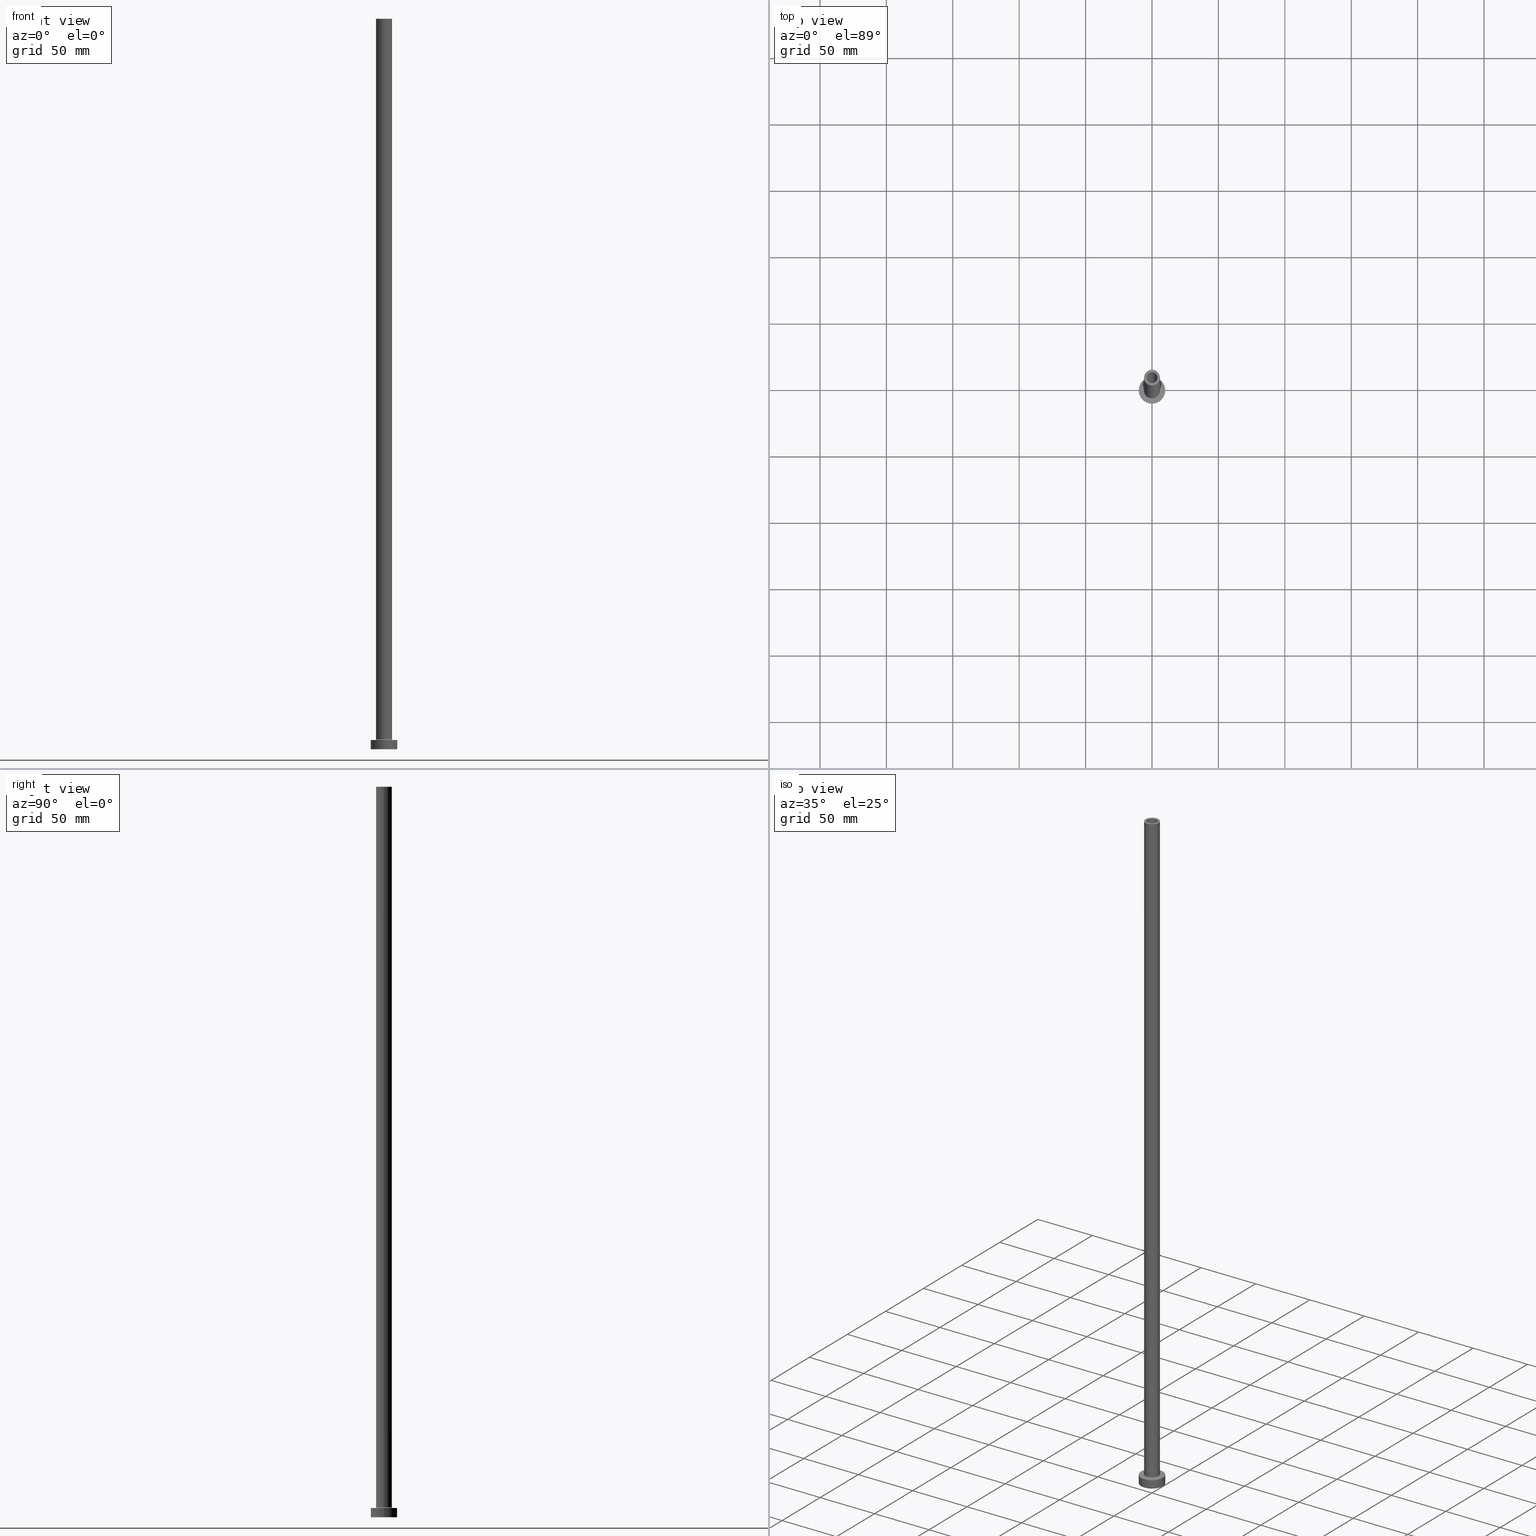
[diagram: canonical four-view strip — front | top / right | iso, engineering-drawing reading convention]
A machine part, canonical four-view strip (front | top / right | iso — engineering-drawing reading convention). The complete STEP part file that produces these views, byte-faithful:
ISO-10303-21;
HEADER;
FILE_DESCRIPTION (( 'STEP AP203' ),
    '1' );
FILE_NAME ('f1fe.STEP',
    '2023-02-13T07:38:58',
    ( '' ),
    ( '' ),
    'SwSTEP 2.0',
    'SolidWorks 2019',
    '' );
FILE_SCHEMA (( 'CONFIG_CONTROL_DESIGN' ));
ENDSEC;

DATA;
#1 = CARTESIAN_POINT ( 'NONE',  ( 0.000000000000000000, 0.000000000000000000, 550.0000000000000000 ) ) ;
#2 = EDGE_CURVE ( 'NONE', #344, #129, #308, .T. ) ;
#3 = CARTESIAN_POINT ( 'NONE',  ( -10.00000000000000000, 0.000000000000000000, 7.000000000000000000 ) ) ;
#4 = CARTESIAN_POINT ( 'NONE',  ( 0.000000000000000000, 0.000000000000000000, 550.0000000000000000 ) ) ;
#5 = DIRECTION ( 'NONE',  ( 0.000000000000000000, 0.000000000000000000, 1.000000000000000000 ) ) ;
#6 = CARTESIAN_POINT ( 'NONE',  ( -4.099999999999999645, 0.000000000000000000, 550.0000000000000000 ) ) ;
#7 = APPROVAL_STATUS ( 'not_yet_approved' ) ;
#8 = CIRCLE ( 'NONE', #23, 4.250000000000000000 ) ;
#9 =( GEOMETRIC_REPRESENTATION_CONTEXT ( 3 ) GLOBAL_UNCERTAINTY_ASSIGNED_CONTEXT ( ( #285 ) ) GLOBAL_UNIT_ASSIGNED_CONTEXT ( ( #151, #10, #235 ) ) REPRESENTATION_CONTEXT ( 'NONE', 'WORKASPACE' ) );
#10 =( NAMED_UNIT ( * ) PLANE_ANGLE_UNIT ( ) SI_UNIT ( $, .RADIAN. ) );
#11 = ORIENTED_EDGE ( 'NONE', *, *, #343, .T. ) ;
#12 = CARTESIAN_POINT ( 'NONE',  ( 6.000000000000000888, 7.347880794884120722E-16, 7.700000000000040146 ) ) ;
#13 = DIRECTION ( 'NONE',  ( 0.000000000000000000, 0.000000000000000000, 1.000000000000000000 ) ) ;
#14 = APPLICATION_CONTEXT ( 'configuration controlled 3d designs of mechanical parts and assemblies' ) ;
#15 = EDGE_CURVE ( 'NONE', #458, #135, #229, .T. ) ;
#16 = ORIENTED_EDGE ( 'NONE', *, *, #187, .T. ) ;
#17 = AXIS2_PLACEMENT_3D ( 'NONE', #260, #252, #327 ) ;
#18 = APPROVAL_PERSON_ORGANIZATION ( #281, #310, #146 ) ;
#19 = DIRECTION ( 'NONE',  ( -1.000000000000000000, 0.000000000000000000, 0.000000000000000000 ) ) ;
#20 = EDGE_CURVE ( 'NONE', #135, #313, #412, .T. ) ;
#21 = DIRECTION ( 'NONE',  ( 0.000000000000000000, 0.000000000000000000, 1.000000000000000000 ) ) ;
#22 = VERTEX_POINT ( 'NONE', #25 ) ;
#23 = AXIS2_PLACEMENT_3D ( 'NONE', #208, #390, #213 ) ;
#24 = CC_DESIGN_APPROVAL ( #310, ( #431 ) ) ;
#25 = CARTESIAN_POINT ( 'NONE',  ( -10.00000000000000000, 0.000000000000000000, 0.000000000000000000 ) ) ;
#26 = ORIENTED_EDGE ( 'NONE', *, *, #434, .F. ) ;
#27 = APPROVAL_ROLE ( '' ) ;
#28 = ORIENTED_EDGE ( 'NONE', *, *, #52, .T. ) ;
#29 = EDGE_LOOP ( 'NONE', ( #94, #26, #384, #245 ) ) ;
#30 = CIRCLE ( 'NONE', #294, 0.7000000000000000666 ) ;
#31 = DIRECTION ( 'NONE',  ( 0.000000000000000000, 0.000000000000000000, 1.000000000000000000 ) ) ;
#32 = DIRECTION ( 'NONE',  ( 0.000000000000000000, -1.000000000000000000, 0.000000000000000000 ) ) ;
#33 = ORIENTED_EDGE ( 'NONE', *, *, #358, .F. ) ;
#34 = CC_DESIGN_DATE_AND_TIME_ASSIGNMENT ( #417, #131, ( #339 ) ) ;
#35 = PLANE ( 'NONE',  #53 ) ;
#36 = AXIS2_PLACEMENT_3D ( 'NONE', #354, #392, #169 ) ;
#37 = DIRECTION ( 'NONE',  ( 1.000000000000000000, 0.000000000000000000, 0.000000000000000000 ) ) ;
#38 = CARTESIAN_POINT ( 'NONE',  ( 0.000000000000000000, 0.000000000000000000, 505.0000000000000000 ) ) ;
#39 = DIRECTION ( 'NONE',  ( 1.000000000000000000, 0.000000000000000000, 0.000000000000000000 ) ) ;
#40 = CARTESIAN_POINT ( 'NONE',  ( 4.099999999999999645, 5.021051876504147385E-16, 505.0000000000000000 ) ) ;
#41 = PERSON_AND_ORGANIZATION ( #119, #72 ) ;
#42 = DIRECTION ( 'NONE',  ( 0.000000000000000000, 0.000000000000000000, -1.000000000000000000 ) ) ;
#43 = CARTESIAN_POINT ( 'NONE',  ( 0.000000000000000000, 0.000000000000000000, 517.0208152801712913 ) ) ;
#44 = CC_DESIGN_PERSON_AND_ORGANIZATION_ASSIGNMENT ( #258, #400, ( #431 ) ) ;
#45 = DIRECTION ( 'NONE',  ( 1.000000000000000000, 0.000000000000000000, 0.000000000000000000 ) ) ;
#46 = DIRECTION ( 'NONE',  ( 0.000000000000000000, 0.000000000000000000, 1.000000000000000000 ) ) ;
#47 = CIRCLE ( 'NONE', #306, 4.099999999999999645 ) ;
#48 = PRODUCT ( 'f1fe', 'f1fe', '', ( #251 ) ) ;
#49 = CARTESIAN_POINT ( 'NONE',  ( 0.000000000000000000, 0.000000000000000000, 550.0000000000000000 ) ) ;
#50 = CC_DESIGN_PERSON_AND_ORGANIZATION_ASSIGNMENT ( #97, #223, ( #386 ) ) ;
#51 = LINE ( 'NONE', #300, #183 ) ;
#52 = EDGE_CURVE ( 'NONE', #82, #203, #441, .T. ) ;
#53 = AXIS2_PLACEMENT_3D ( 'NONE', #320, #286, #108 ) ;
#54 = ADVANCED_FACE ( 'NONE', ( #452 ), #345, .T. ) ;
#55 = CARTESIAN_POINT ( 'NONE',  ( -6.700000000000001066, 8.205133554287267548E-16, 7.700000000000040146 ) ) ;
#56 = DIRECTION ( 'NONE',  ( 1.000000000000000000, 0.000000000000000000, 0.000000000000000000 ) ) ;
#57 = PERSON_AND_ORGANIZATION_ROLE ( 'classification_officer' ) ;
#58 = ORIENTED_EDGE ( 'NONE', *, *, #187, .F. ) ;
#59 = DIRECTION ( 'NONE',  ( 1.000000000000000000, 0.000000000000000000, 0.000000000000000000 ) ) ;
#60 = EDGE_LOOP ( 'NONE', ( #92, #232 ) ) ;
#61 = CIRCLE ( 'NONE', #436, 6.000000000000000888 ) ;
#62 = ORIENTED_EDGE ( 'NONE', *, *, #378, .T. ) ;
#63 = VECTOR ( 'NONE', #148, 1000.000000000000000 ) ;
#64 = DESIGN_CONTEXT ( 'detailed design', #14, 'design' ) ;
#65 = EDGE_CURVE ( 'NONE', #129, #418, #426, .T. ) ;
#66 = DIRECTION ( 'NONE',  ( 1.000000000000000000, 0.000000000000000000, 0.000000000000000000 ) ) ;
#67 = FACE_BOUND ( 'NONE', #342, .T. ) ;
#68 = ORIENTED_EDGE ( 'NONE', *, *, #435, .T. ) ;
#69 = CARTESIAN_POINT ( 'NONE',  ( 0.000000000000000000, 0.000000000000000000, 0.000000000000000000 ) ) ;
#70 = DIRECTION ( 'NONE',  ( 1.000000000000000000, 0.000000000000000000, -0.000000000000000000 ) ) ;
#71 = AXIS2_PLACEMENT_3D ( 'NONE', #267, #405, #265 ) ;
#72 = ORGANIZATION ( 'NEUR�EN�', 'NEUR�EN�', '' ) ;
#73 = CARTESIAN_POINT ( 'NONE',  ( -10.00000000000000000, 0.000000000000000000, 7.000000000000000000 ) ) ;
#74 = PLANE ( 'NONE',  #153 ) ;
#75 = DIRECTION ( 'NONE',  ( -1.000000000000000000, 0.000000000000000000, 0.000000000000000000 ) ) ;
#76 = APPROVAL_DATE_TIME ( #117, #310 ) ;
#77 = DIRECTION ( 'NONE',  ( -0.000000000000000000, -0.000000000000000000, -1.000000000000000000 ) ) ;
#78 = DIRECTION ( 'NONE',  ( 0.000000000000000000, 0.000000000000000000, -1.000000000000000000 ) ) ;
#79 = DIRECTION ( 'NONE',  ( 1.000000000000000000, 0.000000000000000000, 0.000000000000000000 ) ) ;
#80 = EDGE_CURVE ( 'NONE', #207, #82, #377, .T. ) ;
#81 = DIRECTION ( 'NONE',  ( 0.000000000000000000, 0.000000000000000000, 1.000000000000000000 ) ) ;
#82 = VERTEX_POINT ( 'NONE', #40 ) ;
#83 = CIRCLE ( 'NONE', #455, 4.099999999999999645 ) ;
#84 = AXIS2_PLACEMENT_3D ( 'NONE', #317, #460, #365 ) ;
#85 = EDGE_LOOP ( 'NONE', ( #448, #347, #58, #284 ) ) ;
#86 = DIRECTION ( 'NONE',  ( -0.000000000000000000, -0.000000000000000000, -1.000000000000000000 ) ) ;
#87 = APPROVAL_STATUS ( 'not_yet_approved' ) ;
#88 = DIRECTION ( 'NONE',  ( 0.000000000000000000, 0.000000000000000000, 1.000000000000000000 ) ) ;
#89 = AXIS2_PLACEMENT_3D ( 'NONE', #170, #357, #37 ) ;
#90 = APPROVAL_DATE_TIME ( #206, #341 ) ;
#91 = ORIENTED_EDGE ( 'NONE', *, *, #358, .T. ) ;
#92 = ORIENTED_EDGE ( 'NONE', *, *, #194, .F. ) ;
#93 = DIRECTION ( 'NONE',  ( 0.000000000000000000, 0.000000000000000000, 1.000000000000000000 ) ) ;
#94 = ORIENTED_EDGE ( 'NONE', *, *, #435, .F. ) ;
#95 = ADVANCED_FACE ( 'NONE', ( #210, #107 ), #100, .T. ) ;
#96 = ORIENTED_EDGE ( 'NONE', *, *, #162, .F. ) ;
#97 = PERSON_AND_ORGANIZATION ( #119, #72 ) ;
#98 = COORDINATED_UNIVERSAL_TIME_OFFSET ( 1, 0, .AHEAD. ) ;
#99 = DIRECTION ( 'NONE',  ( 0.000000000000000000, 0.000000000000000000, 1.000000000000000000 ) ) ;
#100 = PLANE ( 'NONE',  #236 ) ;
#101 = EDGE_CURVE ( 'NONE', #422, #344, #8, .T. ) ;
#102 = AXIS2_PLACEMENT_3D ( 'NONE', #192, #336, #19 ) ;
#103 = ORIENTED_EDGE ( 'NONE', *, *, #65, .T. ) ;
#104 = AXIS2_PLACEMENT_3D ( 'NONE', #328, #321, #39 ) ;
#105 = FACE_OUTER_BOUND ( 'NONE', #351, .T. ) ;
#106 = ORIENTED_EDGE ( 'NONE', *, *, #80, .F. ) ;
#107 = FACE_OUTER_BOUND ( 'NONE', #428, .T. ) ;
#108 = DIRECTION ( 'NONE',  ( 1.000000000000000000, 0.000000000000000000, -0.000000000000000000 ) ) ;
#109 = FACE_OUTER_BOUND ( 'NONE', #60, .T. ) ;
#110 = ORIENTED_EDGE ( 'NONE', *, *, #124, .F. ) ;
#111 = DIRECTION ( 'NONE',  ( 1.000000000000000000, 0.000000000000000000, 0.000000000000000000 ) ) ;
#112 = DIRECTION ( 'NONE',  ( 0.000000000000000000, 0.000000000000000000, -1.000000000000000000 ) ) ;
#113 = CIRCLE ( 'NONE', #293, 10.00000000000000000 ) ;
#114 = DIRECTION ( 'NONE',  ( 0.000000000000000000, 0.000000000000000000, -1.000000000000000000 ) ) ;
#115 = CARTESIAN_POINT ( 'NONE',  ( 10.00000000000000000, 1.224646799147353256E-15, 7.000000000000000000 ) ) ;
#116 = FACE_OUTER_BOUND ( 'NONE', #381, .T. ) ;
#117 = DATE_AND_TIME ( #202, #276 ) ;
#118 = PRODUCT_DEFINITION_SHAPE ( 'NONE', 'NONE',  #431 ) ;
#119 = PERSON ( 'NEUR�EN�', 'NEUR�EN�', 'NEUR�EN�', ('NEUR�EN�'), ('NEUR�EN�'), ('NEUR�EN�') ) ;
#120 = VECTOR ( 'NONE', #189, 1000.000000000000000 ) ;
#121 = ORIENTED_EDGE ( 'NONE', *, *, #408, .F. ) ;
#122 = CARTESIAN_POINT ( 'NONE',  ( 10.00000000000000000, 1.224646799147353256E-15, 0.000000000000000000 ) ) ;
#123 = DIRECTION ( 'NONE',  ( 1.000000000000000000, 0.000000000000000000, 0.000000000000000000 ) ) ;
#124 = EDGE_CURVE ( 'NONE', #22, #166, #319, .T. ) ;
#125 = ORIENTED_EDGE ( 'NONE', *, *, #352, .T. ) ;
#126 = LOCAL_TIME ( 8, 38, 58.00000000000000000, #163 ) ;
#127 = EDGE_LOOP ( 'NONE', ( #305, #68, #11, #425 ) ) ;
#128 = ORIENTED_EDGE ( 'NONE', *, *, #154, .T. ) ;
#129 = VERTEX_POINT ( 'NONE', #432 ) ;
#130 = AXIS2_PLACEMENT_3D ( 'NONE', #227, #261, #75 ) ;
#131 = DATE_TIME_ROLE ( 'classification_date' ) ;
#132 = ORIENTED_EDGE ( 'NONE', *, *, #172, .F. ) ;
#133 = ORIENTED_EDGE ( 'NONE', *, *, #225, .F. ) ;
#134 = DIRECTION ( 'NONE',  ( 1.000000000000000000, 0.000000000000000000, 0.000000000000000000 ) ) ;
#135 = VERTEX_POINT ( 'NONE', #141 ) ;
#136 = CARTESIAN_POINT ( 'NONE',  ( 0.000000000000000000, 0.000000000000000000, 0.000000000000000000 ) ) ;
#137 = ADVANCED_FACE ( 'NONE', ( #361 ), #338, .F. ) ;
#138 = AXIS2_PLACEMENT_3D ( 'NONE', #254, #257, #111 ) ;
#139 = LOCAL_TIME ( 8, 38, 58.00000000000000000, #98 ) ;
#140 = CYLINDRICAL_SURFACE ( 'NONE', #17, 4.250000000000000000 ) ;
#141 = CARTESIAN_POINT ( 'NONE',  ( -6.000000000000000888, 0.000000000000000000, 7.700000000000040146 ) ) ;
#142 = CARTESIAN_POINT ( 'NONE',  ( 0.000000000000000000, 0.000000000000000000, 7.700000000000040146 ) ) ;
#143 = PERSON_AND_ORGANIZATION ( #119, #72 ) ;
#144 = DIRECTION ( 'NONE',  ( 0.000000000000000000, 0.000000000000000000, -1.000000000000000000 ) ) ;
#145 = CARTESIAN_POINT ( 'NONE',  ( 4.250000000000000000, 5.204748896376250699E-16, 505.0000000000000000 ) ) ;
#146 = APPROVAL_ROLE ( '' ) ;
#147 = CARTESIAN_POINT ( 'NONE',  ( 0.000000000000000000, 0.000000000000000000, 7.700000000000040146 ) ) ;
#148 = DIRECTION ( 'NONE',  ( -0.000000000000000000, -0.000000000000000000, -1.000000000000000000 ) ) ;
#149 = EDGE_CURVE ( 'NONE', #416, #135, #323, .T. ) ;
#150 = ORIENTED_EDGE ( 'NONE', *, *, #175, .F. ) ;
#151 =( LENGTH_UNIT ( ) NAMED_UNIT ( * ) SI_UNIT ( .MILLI., .METRE. ) );
#152 = AXIS2_PLACEMENT_3D ( 'NONE', #1, #42, #316 ) ;
#153 = AXIS2_PLACEMENT_3D ( 'NONE', #330, #255, #362 ) ;
#154 = EDGE_CURVE ( 'NONE', #413, #203, #51, .T. ) ;
#155 = DIRECTION ( 'NONE',  ( 0.000000000000000000, 0.000000000000000000, 1.000000000000000000 ) ) ;
#156 = EDGE_LOOP ( 'NONE', ( #195, #168, #200, #121 ) ) ;
#157 = AXIS2_PLACEMENT_3D ( 'NONE', #55, #158, #243 ) ;
#158 = DIRECTION ( 'NONE',  ( 1.224646799147353207E-16, 1.000000000000000000, -0.000000000000000000 ) ) ;
#159 = AXIS2_PLACEMENT_3D ( 'NONE', #43, #112, #324 ) ;
#160 = CARTESIAN_POINT ( 'NONE',  ( 0.000000000000000000, 0.000000000000000000, 505.0000000000000000 ) ) ;
#161 = ORIENTED_EDGE ( 'NONE', *, *, #240, .T. ) ;
#162 = EDGE_CURVE ( 'NONE', #424, #416, #61, .T. ) ;
#163 = COORDINATED_UNIVERSAL_TIME_OFFSET ( 1, 0, .AHEAD. ) ;
#164 = DIRECTION ( 'NONE',  ( -1.000000000000000000, 0.000000000000000000, 0.000000000000000000 ) ) ;
#165 = LOCAL_TIME ( 8, 38, 58.00000000000000000, #325 ) ;
#166 = VERTEX_POINT ( 'NONE', #122 ) ;
#167 = CARTESIAN_POINT ( 'NONE',  ( 0.000000000000000000, 0.000000000000000000, 7.700000000000040146 ) ) ;
#168 = ORIENTED_EDGE ( 'NONE', *, *, #15, .F. ) ;
#169 = DIRECTION ( 'NONE',  ( -1.000000000000000000, 0.000000000000000000, 0.000000000000000000 ) ) ;
#170 = CARTESIAN_POINT ( 'NONE',  ( 0.000000000000000000, 0.000000000000000000, 0.000000000000000000 ) ) ;
#171 = DIRECTION ( 'NONE',  ( -0.000000000000000000, -0.000000000000000000, -1.000000000000000000 ) ) ;
#172 = EDGE_CURVE ( 'NONE', #207, #413, #282, .T. ) ;
#173 = CARTESIAN_POINT ( 'NONE',  ( 4.250000000000000000, 5.204748896376250699E-16, 0.000000000000000000 ) ) ;
#174 = AXIS2_PLACEMENT_3D ( 'NONE', #414, #86, #164 ) ;
#175 = EDGE_CURVE ( 'NONE', #424, #458, #440, .T. ) ;
#176 = CARTESIAN_POINT ( 'NONE',  ( -6.700000000000001066, 8.205133554287267548E-16, 7.000000000000020428 ) ) ;
#177 = FACE_OUTER_BOUND ( 'NONE', #248, .T. ) ;
#178 = CARTESIAN_POINT ( 'NONE',  ( 4.250000000000000000, 5.204748896376250699E-16, 517.0208152801712913 ) ) ;
#179 = CARTESIAN_POINT ( 'NONE',  ( -6.000000000000000888, 0.000000000000000000, 550.0000000000000000 ) ) ;
#180 = CYLINDRICAL_SURFACE ( 'NONE', #102, 4.099999999999999645 ) ;
#181 = PERSON_AND_ORGANIZATION_ROLE ( 'design_supplier' ) ;
#182 = FACE_BOUND ( 'NONE', #280, .T. ) ;
#183 = VECTOR ( 'NONE', #78, 1000.000000000000000 ) ;
#184 = CC_DESIGN_SECURITY_CLASSIFICATION ( #339, ( #386 ) ) ;
#185 = CARTESIAN_POINT ( 'NONE',  ( 6.000000000000000888, 7.347880794884120722E-16, 550.0000000000000000 ) ) ;
#186 = ORIENTED_EDGE ( 'NONE', *, *, #52, .F. ) ;
#187 = EDGE_CURVE ( 'NONE', #190, #313, #447, .T. ) ;
#188 = DIRECTION ( 'NONE',  ( 0.000000000000000000, 0.000000000000000000, 1.000000000000000000 ) ) ;
#189 = DIRECTION ( 'NONE',  ( -0.000000000000000000, -0.000000000000000000, -1.000000000000000000 ) ) ;
#190 = VERTEX_POINT ( 'NONE', #411 ) ;
#191 = CIRCLE ( 'NONE', #138, 10.00000000000000000 ) ;
#192 = CARTESIAN_POINT ( 'NONE',  ( 0.000000000000000000, 0.000000000000000000, 550.0000000000000000 ) ) ;
#193 = ORIENTED_EDGE ( 'NONE', *, *, #371, .T. ) ;
#194 = EDGE_CURVE ( 'NONE', #344, #422, #376, .T. ) ;
#195 = ORIENTED_EDGE ( 'NONE', *, *, #20, .F. ) ;
#196 = PERSON_AND_ORGANIZATION ( #119, #72 ) ;
#197 = AXIS2_PLACEMENT_3D ( 'NONE', #444, #77, #427 ) ;
#198 = ORIENTED_EDGE ( 'NONE', *, *, #434, .T. ) ;
#199 = APPROVAL_PERSON_ORGANIZATION ( #196, #453, #27 ) ;
#200 = ORIENTED_EDGE ( 'NONE', *, *, #318, .T. ) ;
#201 = ORIENTED_EDGE ( 'NONE', *, *, #65, .F. ) ;
#202 = CALENDAR_DATE ( 2023, 13, 2 ) ;
#203 = VERTEX_POINT ( 'NONE', #368 ) ;
#204 = AXIS2_PLACEMENT_3D ( 'NONE', #273, #239, #56 ) ;
#205 = CIRCLE ( 'NONE', #84, 6.700000000000001066 ) ;
#206 = DATE_AND_TIME ( #383, #139 ) ;
#207 = VERTEX_POINT ( 'NONE', #363 ) ;
#208 = CARTESIAN_POINT ( 'NONE',  ( 0.000000000000000000, 0.000000000000000000, 505.0000000000000000 ) ) ;
#209 = FACE_OUTER_BOUND ( 'NONE', #29, .T. ) ;
#210 = FACE_BOUND ( 'NONE', #370, .T. ) ;
#211 = FACE_OUTER_BOUND ( 'NONE', #456, .T. ) ;
#212 = ORIENTED_EDGE ( 'NONE', *, *, #2, .F. ) ;
#213 = DIRECTION ( 'NONE',  ( 1.000000000000000000, 0.000000000000000000, 0.000000000000000000 ) ) ;
#214 = APPROVAL_DATE_TIME ( #461, #453 ) ;
#215 = DIRECTION ( 'NONE',  ( -0.000000000000000000, -0.000000000000000000, -1.000000000000000000 ) ) ;
#216 = CARTESIAN_POINT ( 'NONE',  ( 6.000000000000000888, 7.347880794884120722E-16, 550.0000000000000000 ) ) ;
#217 = CIRCLE ( 'NONE', #274, 4.250000000000000000 ) ;
#218 = AXIS2_PLACEMENT_3D ( 'NONE', #402, #262, #70 ) ;
#219 = SECURITY_CLASSIFICATION_LEVEL ( 'unclassified' ) ;
#220 = LINE ( 'NONE', #178, #311 ) ;
#221 = CYLINDRICAL_SURFACE ( 'NONE', #159, 4.250000000000000000 ) ;
#222 = CARTESIAN_POINT ( 'NONE',  ( -6.000000000000000888, 0.000000000000000000, 550.0000000000000000 ) ) ;
#223 = PERSON_AND_ORGANIZATION_ROLE ( 'creator' ) ;
#224 = CC_DESIGN_PERSON_AND_ORGANIZATION_ASSIGNMENT ( #326, #246, ( #48 ) ) ;
#225 = EDGE_CURVE ( 'NONE', #413, #207, #47, .T. ) ;
#226 = ORIENTED_EDGE ( 'NONE', *, *, #101, .T. ) ;
#227 = CARTESIAN_POINT ( 'NONE',  ( 0.000000000000000000, 0.000000000000000000, 550.0000000000000000 ) ) ;
#228 = ADVANCED_FACE ( 'NONE', ( #233 ), #180, .F. ) ;
#229 = CIRCLE ( 'NONE', #407, 6.000000000000000888 ) ;
#230 = APPROVAL_PERSON_ORGANIZATION ( #244, #341, #346 ) ;
#231 = CARTESIAN_POINT ( 'NONE',  ( 0.000000000000000000, 0.000000000000000000, 550.0000000000000000 ) ) ;
#232 = ORIENTED_EDGE ( 'NONE', *, *, #101, .F. ) ;
#233 = FACE_OUTER_BOUND ( 'NONE', #312, .T. ) ;
#234 = CC_DESIGN_DATE_AND_TIME_ASSIGNMENT ( #266, #369, ( #431 ) ) ;
#235 =( NAMED_UNIT ( * ) SI_UNIT ( $, .STERADIAN. ) SOLID_ANGLE_UNIT ( ) );
#236 = AXIS2_PLACEMENT_3D ( 'NONE', #4, #388, #250 ) ;
#237 = EDGE_LOOP ( 'NONE', ( #201, #275 ) ) ;
#238 = CC_DESIGN_PERSON_AND_ORGANIZATION_ASSIGNMENT ( #41, #57, ( #339 ) ) ;
#239 = DIRECTION ( 'NONE',  ( -0.000000000000000000, -0.000000000000000000, -1.000000000000000000 ) ) ;
#240 = EDGE_CURVE ( 'NONE', #135, #458, #242, .T. ) ;
#241 = ADVANCED_FACE ( 'NONE', ( #304 ), #403, .T. ) ;
#242 = CIRCLE ( 'NONE', #366, 6.000000000000000888 ) ;
#243 = DIRECTION ( 'NONE',  ( -1.000000000000000000, 1.224646799147353454E-16, 0.000000000000000000 ) ) ;
#244 = PERSON_AND_ORGANIZATION ( #119, #72 ) ;
#245 = ORIENTED_EDGE ( 'NONE', *, *, #124, .T. ) ;
#246 = PERSON_AND_ORGANIZATION_ROLE ( 'design_owner' ) ;
#247 = EDGE_LOOP ( 'NONE', ( #150, #420, #373, #161 ) ) ;
#248 = EDGE_LOOP ( 'NONE', ( #96, #287, #277, #367 ) ) ;
#249 = AXIS2_PLACEMENT_3D ( 'NONE', #268, #439, #79 ) ;
#250 = DIRECTION ( 'NONE',  ( 1.000000000000000000, 0.000000000000000000, -0.000000000000000000 ) ) ;
#251 = MECHANICAL_CONTEXT ( 'NONE', #450, 'mechanical' ) ;
#252 = DIRECTION ( 'NONE',  ( 0.000000000000000000, 0.000000000000000000, -1.000000000000000000 ) ) ;
#253 = FACE_BOUND ( 'NONE', #237, .T. ) ;
#254 = CARTESIAN_POINT ( 'NONE',  ( 0.000000000000000000, 0.000000000000000000, 0.000000000000000000 ) ) ;
#255 = DIRECTION ( 'NONE',  ( 0.000000000000000000, 0.000000000000000000, 1.000000000000000000 ) ) ;
#256 = ORIENTED_EDGE ( 'NONE', *, *, #162, .T. ) ;
#257 = DIRECTION ( 'NONE',  ( 0.000000000000000000, 0.000000000000000000, 1.000000000000000000 ) ) ;
#258 = PERSON_AND_ORGANIZATION ( #119, #72 ) ;
#259 = VECTOR ( 'NONE', #331, 1000.000000000000000 ) ;
#260 = CARTESIAN_POINT ( 'NONE',  ( 0.000000000000000000, 0.000000000000000000, 517.0208152801712913 ) ) ;
#261 = DIRECTION ( 'NONE',  ( -0.000000000000000000, -0.000000000000000000, -1.000000000000000000 ) ) ;
#262 = DIRECTION ( 'NONE',  ( 0.000000000000000000, 0.000000000000000000, 1.000000000000000000 ) ) ;
#263 = APPLICATION_PROTOCOL_DEFINITION ( 'international standard', 'config_control_design', 1994, #450 ) ;
#264 = VECTOR ( 'NONE', #374, 1000.000000000000000 ) ;
#265 = DIRECTION ( 'NONE',  ( 1.000000000000000000, 0.000000000000000000, 0.000000000000000000 ) ) ;
#266 = DATE_AND_TIME ( #406, #165 ) ;
#267 = CARTESIAN_POINT ( 'NONE',  ( 0.000000000000000000, 0.000000000000000000, 7.000000000000000000 ) ) ;
#268 = CARTESIAN_POINT ( 'NONE',  ( 0.000000000000000000, 0.000000000000000000, 505.0000000000000000 ) ) ;
#269 = AXIS2_PLACEMENT_3D ( 'NONE', #142, #291, #123 ) ;
#270 = CC_DESIGN_APPROVAL ( #453, ( #386 ) ) ;
#271 = ORIENTED_EDGE ( 'NONE', *, *, #408, .T. ) ;
#272 = ORIENTED_EDGE ( 'NONE', *, *, #154, .F. ) ;
#273 = CARTESIAN_POINT ( 'NONE',  ( 0.000000000000000000, 0.000000000000000000, 0.000000000000000000 ) ) ;
#274 = AXIS2_PLACEMENT_3D ( 'NONE', #69, #215, #398 ) ;
#275 = ORIENTED_EDGE ( 'NONE', *, *, #352, .F. ) ;
#276 = LOCAL_TIME ( 8, 38, 58.00000000000000000, #380 ) ;
#277 = ORIENTED_EDGE ( 'NONE', *, *, #15, .T. ) ;
#278 = ORIENTED_EDGE ( 'NONE', *, *, #225, .T. ) ;
#279 = CALENDAR_DATE ( 2023, 13, 2 ) ;
#280 = EDGE_LOOP ( 'NONE', ( #91, #28 ) ) ;
#281 = PERSON_AND_ORGANIZATION ( #119, #72 ) ;
#282 = CIRCLE ( 'NONE', #329, 4.099999999999999645 ) ;
#283 = CIRCLE ( 'NONE', #104, 10.00000000000000000 ) ;
#284 = ORIENTED_EDGE ( 'NONE', *, *, #318, .F. ) ;
#285 = UNCERTAINTY_MEASURE_WITH_UNIT (LENGTH_MEASURE( 1.000000000000000082E-05 ), #151, 'distance_accuracy_value', 'NONE');
#286 = DIRECTION ( 'NONE',  ( 0.000000000000000000, 0.000000000000000000, 1.000000000000000000 ) ) ;
#287 = ORIENTED_EDGE ( 'NONE', *, *, #175, .T. ) ;
#288 = FACE_OUTER_BOUND ( 'NONE', #156, .T. ) ;
#289 = CYLINDRICAL_SURFACE ( 'NONE', #130, 6.000000000000000888 ) ;
#290 = ADVANCED_FACE ( 'NONE', ( #105 ), #457, .F. ) ;
#291 = DIRECTION ( 'NONE',  ( 0.000000000000000000, 0.000000000000000000, 1.000000000000000000 ) ) ;
#292 = FACE_OUTER_BOUND ( 'NONE', #409, .T. ) ;
#293 = AXIS2_PLACEMENT_3D ( 'NONE', #401, #99, #387 ) ;
#294 = AXIS2_PLACEMENT_3D ( 'NONE', #295, #32, #391 ) ;
#295 = CARTESIAN_POINT ( 'NONE',  ( 6.700000000000001066, 0.000000000000000000, 7.700000000000040146 ) ) ;
#296 = CARTESIAN_POINT ( 'NONE',  ( 0.000000000000000000, 0.000000000000000000, 550.0000000000000000 ) ) ;
#297 = DIRECTION ( 'NONE',  ( 1.000000000000000000, 0.000000000000000000, 0.000000000000000000 ) ) ;
#298 = VECTOR ( 'NONE', #114, 1000.000000000000000 ) ;
#299 = AXIS2_PLACEMENT_3D ( 'NONE', #429, #31, #66 ) ;
#300 = CARTESIAN_POINT ( 'NONE',  ( -4.099999999999999645, 0.000000000000000000, 550.0000000000000000 ) ) ;
#301 = CALENDAR_DATE ( 2023, 13, 2 ) ;
#302 = ADVANCED_FACE ( 'NONE', ( #288 ), #459, .F. ) ;
#303 = EDGE_CURVE ( 'NONE', #364, #22, #353, .T. ) ;
#304 = FACE_OUTER_BOUND ( 'NONE', #247, .T. ) ;
#305 = ORIENTED_EDGE ( 'NONE', *, *, #378, .F. ) ;
#306 = AXIS2_PLACEMENT_3D ( 'NONE', #49, #81, #45 ) ;
#307 = DIRECTION ( 'NONE',  ( 1.000000000000000000, 0.000000000000000000, 0.000000000000000000 ) ) ;
#308 = LINE ( 'NONE', #379, #264 ) ;
#309 = CARTESIAN_POINT ( 'NONE',  ( 0.000000000000000000, 0.000000000000000000, 7.700000000000040146 ) ) ;
#310 = APPROVAL ( #7, 'NEUR�EN�' ) ;
#311 = VECTOR ( 'NONE', #144, 1000.000000000000000 ) ;
#312 = EDGE_LOOP ( 'NONE', ( #278, #451, #33, #272 ) ) ;
#313 = VERTEX_POINT ( 'NONE', #176 ) ;
#314 = ADVANCED_FACE ( 'NONE', ( #430 ), #140, .F. ) ;
#315 = CYLINDRICAL_SURFACE ( 'NONE', #36, 10.00000000000000000 ) ;
#316 = DIRECTION ( 'NONE',  ( -1.000000000000000000, 0.000000000000000000, 0.000000000000000000 ) ) ;
#317 = CARTESIAN_POINT ( 'NONE',  ( 0.000000000000000000, 0.000000000000000000, 7.000000000000000000 ) ) ;
#318 = EDGE_CURVE ( 'NONE', #458, #190, #30, .T. ) ;
#319 = CIRCLE ( 'NONE', #89, 10.00000000000000000 ) ;
#320 = CARTESIAN_POINT ( 'NONE',  ( 0.000000000000000000, 0.000000000000000000, 7.000000000000000000 ) ) ;
#321 = DIRECTION ( 'NONE',  ( 0.000000000000000000, 0.000000000000000000, 1.000000000000000000 ) ) ;
#322 = DIRECTION ( 'NONE',  ( 1.000000000000000000, 0.000000000000000000, 0.000000000000000000 ) ) ;
#323 = LINE ( 'NONE', #222, #259 ) ;
#324 = DIRECTION ( 'NONE',  ( -1.000000000000000000, 0.000000000000000000, 0.000000000000000000 ) ) ;
#325 = COORDINATED_UNIVERSAL_TIME_OFFSET ( 1, 0, .AHEAD. ) ;
#326 = PERSON_AND_ORGANIZATION ( #119, #72 ) ;
#327 = DIRECTION ( 'NONE',  ( -1.000000000000000000, 0.000000000000000000, 0.000000000000000000 ) ) ;
#328 = CARTESIAN_POINT ( 'NONE',  ( 0.000000000000000000, 0.000000000000000000, 7.000000000000000000 ) ) ;
#329 = AXIS2_PLACEMENT_3D ( 'NONE', #231, #13, #297 ) ;
#330 = CARTESIAN_POINT ( 'NONE',  ( 0.000000000000000000, 0.000000000000000000, 505.0000000000000000 ) ) ;
#331 = DIRECTION ( 'NONE',  ( -0.000000000000000000, -0.000000000000000000, -1.000000000000000000 ) ) ;
#332 = ADVANCED_FACE ( 'NONE', ( #67, #211 ), #35, .T. ) ;
#333 = EDGE_LOOP ( 'NONE', ( #445, #193, #125, #212 ) ) ;
#334 = CLOSED_SHELL ( 'NONE', ( #228, #314, #137, #449, #54, #396, #332, #423, #241, #95, #302, #410, #415, #290 ) ) ;
#335 = CC_DESIGN_APPROVAL ( #341, ( #339 ) ) ;
#336 = DIRECTION ( 'NONE',  ( 0.000000000000000000, 0.000000000000000000, -1.000000000000000000 ) ) ;
#337 = ORIENTED_EDGE ( 'NONE', *, *, #395, .T. ) ;
#338 = TOROIDAL_SURFACE ( 'NONE', #269, 6.700000000000001066, 0.6999999999999999556 ) ;
#339 = SECURITY_CLASSIFICATION ( '', '', #219 ) ;
#340 = ORIENTED_EDGE ( 'NONE', *, *, #2, .T. ) ;
#341 = APPROVAL ( #421, 'NEUR�EN�' ) ;
#342 = EDGE_LOOP ( 'NONE', ( #16, #271 ) ) ;
#343 = EDGE_CURVE ( 'NONE', #166, #22, #191, .T. ) ;
#344 = VERTEX_POINT ( 'NONE', #393 ) ;
#345 = CYLINDRICAL_SURFACE ( 'NONE', #174, 10.00000000000000000 ) ;
#346 = APPROVAL_ROLE ( '' ) ;
#347 = ORIENTED_EDGE ( 'NONE', *, *, #20, .T. ) ;
#348 = CIRCLE ( 'NONE', #299, 6.000000000000000888 ) ;
#349 = APPLICATION_PROTOCOL_DEFINITION ( 'international standard', 'config_control_design', 1994, #14 ) ;
#350 = SHAPE_DEFINITION_REPRESENTATION ( #118, #437 ) ;
#351 = EDGE_LOOP ( 'NONE', ( #106, #454, #128, #186 ) ) ;
#352 = EDGE_CURVE ( 'NONE', #418, #129, #217, .T. ) ;
#353 = LINE ( 'NONE', #73, #372 ) ;
#354 = CARTESIAN_POINT ( 'NONE',  ( 0.000000000000000000, 0.000000000000000000, 7.000000000000000000 ) ) ;
#355 = MANIFOLD_SOLID_BREP ( 'Odebrat vysunut�m4', #334 ) ;
#356 = VERTEX_POINT ( 'NONE', #359 ) ;
#357 = DIRECTION ( 'NONE',  ( 0.000000000000000000, 0.000000000000000000, 1.000000000000000000 ) ) ;
#358 = EDGE_CURVE ( 'NONE', #203, #82, #83, .T. ) ;
#359 = CARTESIAN_POINT ( 'NONE',  ( 10.00000000000000000, 1.224646799147353256E-15, 7.000000000000000000 ) ) ;
#360 = LINE ( 'NONE', #115, #63 ) ;
#361 = FACE_OUTER_BOUND ( 'NONE', #85, .T. ) ;
#362 = DIRECTION ( 'NONE',  ( 1.000000000000000000, 0.000000000000000000, -0.000000000000000000 ) ) ;
#363 = CARTESIAN_POINT ( 'NONE',  ( 4.099999999999999645, 5.021051876504147385E-16, 550.0000000000000000 ) ) ;
#364 = VERTEX_POINT ( 'NONE', #3 ) ;
#365 = DIRECTION ( 'NONE',  ( 1.000000000000000000, 0.000000000000000000, 0.000000000000000000 ) ) ;
#366 = AXIS2_PLACEMENT_3D ( 'NONE', #147, #155, #438 ) ;
#367 = ORIENTED_EDGE ( 'NONE', *, *, #149, .F. ) ;
#368 = CARTESIAN_POINT ( 'NONE',  ( -4.099999999999999645, 0.000000000000000000, 505.0000000000000000 ) ) ;
#369 = DATE_TIME_ROLE ( 'creation_date' ) ;
#370 = EDGE_LOOP ( 'NONE', ( #133, #132 ) ) ;
#371 = EDGE_CURVE ( 'NONE', #422, #418, #220, .T. ) ;
#372 = VECTOR ( 'NONE', #171, 1000.000000000000000 ) ;
#373 = ORIENTED_EDGE ( 'NONE', *, *, #149, .T. ) ;
#374 = DIRECTION ( 'NONE',  ( 0.000000000000000000, 0.000000000000000000, -1.000000000000000000 ) ) ;
#375 = COORDINATED_UNIVERSAL_TIME_OFFSET ( 1, 0, .AHEAD. ) ;
#376 = CIRCLE ( 'NONE', #249, 4.250000000000000000 ) ;
#377 = LINE ( 'NONE', #397, #298 ) ;
#378 = EDGE_CURVE ( 'NONE', #356, #364, #113, .T. ) ;
#379 = CARTESIAN_POINT ( 'NONE',  ( -4.250000000000000000, 0.000000000000000000, 517.0208152801712913 ) ) ;
#380 = COORDINATED_UNIVERSAL_TIME_OFFSET ( 1, 0, .AHEAD. ) ;
#381 = EDGE_LOOP ( 'NONE', ( #446, #226, #340, #103 ) ) ;
#382 = PRODUCT_RELATED_PRODUCT_CATEGORY ( 'detail', '', ( #48 ) ) ;
#383 = CALENDAR_DATE ( 2023, 13, 2 ) ;
#384 = ORIENTED_EDGE ( 'NONE', *, *, #303, .T. ) ;
#385 = AXIS2_PLACEMENT_3D ( 'NONE', #160, #88, #307 ) ;
#386 = PRODUCT_DEFINITION_FORMATION_WITH_SPECIFIED_SOURCE ( 'LIBOVOLN�', '', #48, .NOT_KNOWN. ) ;
#387 = DIRECTION ( 'NONE',  ( 1.000000000000000000, 0.000000000000000000, 0.000000000000000000 ) ) ;
#388 = DIRECTION ( 'NONE',  ( 0.000000000000000000, 0.000000000000000000, 1.000000000000000000 ) ) ;
#389 = ORIENTED_EDGE ( 'NONE', *, *, #343, .F. ) ;
#390 = DIRECTION ( 'NONE',  ( 0.000000000000000000, 0.000000000000000000, 1.000000000000000000 ) ) ;
#391 = DIRECTION ( 'NONE',  ( 0.000000000000000000, 0.000000000000000000, -1.000000000000000000 ) ) ;
#392 = DIRECTION ( 'NONE',  ( -0.000000000000000000, -0.000000000000000000, -1.000000000000000000 ) ) ;
#393 = CARTESIAN_POINT ( 'NONE',  ( -4.250000000000000000, 0.000000000000000000, 505.0000000000000000 ) ) ;
#394 = PLANE ( 'NONE',  #218 ) ;
#395 = EDGE_CURVE ( 'NONE', #416, #424, #348, .T. ) ;
#396 = ADVANCED_FACE ( 'NONE', ( #209 ), #315, .T. ) ;
#397 = CARTESIAN_POINT ( 'NONE',  ( 4.099999999999999645, 5.021051876504147385E-16, 550.0000000000000000 ) ) ;
#398 = DIRECTION ( 'NONE',  ( 1.000000000000000000, 0.000000000000000000, 0.000000000000000000 ) ) ;
#399 = LOCAL_TIME ( 8, 38, 58.00000000000000000, #375 ) ;
#400 = PERSON_AND_ORGANIZATION_ROLE ( 'creator' ) ;
#401 = CARTESIAN_POINT ( 'NONE',  ( 0.000000000000000000, 0.000000000000000000, 7.000000000000000000 ) ) ;
#402 = CARTESIAN_POINT ( 'NONE',  ( 0.000000000000000000, 0.000000000000000000, 0.000000000000000000 ) ) ;
#403 = CYLINDRICAL_SURFACE ( 'NONE', #197, 6.000000000000000888 ) ;
#404 = CC_DESIGN_PERSON_AND_ORGANIZATION_ASSIGNMENT ( #143, #181, ( #386 ) ) ;
#405 = DIRECTION ( 'NONE',  ( -0.000000000000000000, -0.000000000000000000, -1.000000000000000000 ) ) ;
#406 = CALENDAR_DATE ( 2023, 13, 2 ) ;
#407 = AXIS2_PLACEMENT_3D ( 'NONE', #309, #21, #59 ) ;
#408 = EDGE_CURVE ( 'NONE', #313, #190, #205, .T. ) ;
#409 = EDGE_LOOP ( 'NONE', ( #110, #389 ) ) ;
#410 = ADVANCED_FACE ( 'NONE', ( #116 ), #221, .F. ) ;
#411 = CARTESIAN_POINT ( 'NONE',  ( 6.700000000000001066, 0.000000000000000000, 7.000000000000020428 ) ) ;
#412 = CIRCLE ( 'NONE', #157, 0.7000000000000000666 ) ;
#413 = VERTEX_POINT ( 'NONE', #6 ) ;
#414 = CARTESIAN_POINT ( 'NONE',  ( 0.000000000000000000, 0.000000000000000000, 7.000000000000000000 ) ) ;
#415 = ADVANCED_FACE ( 'NONE', ( #182, #109 ), #74, .F. ) ;
#416 = VERTEX_POINT ( 'NONE', #179 ) ;
#417 = DATE_AND_TIME ( #279, #126 ) ;
#418 = VERTEX_POINT ( 'NONE', #173 ) ;
#419 = AXIS2_PLACEMENT_3D ( 'NONE', #167, #46, #433 ) ;
#420 = ORIENTED_EDGE ( 'NONE', *, *, #395, .F. ) ;
#421 = APPROVAL_STATUS ( 'not_yet_approved' ) ;
#422 = VERTEX_POINT ( 'NONE', #145 ) ;
#423 = ADVANCED_FACE ( 'NONE', ( #253, #292 ), #394, .F. ) ;
#424 = VERTEX_POINT ( 'NONE', #216 ) ;
#425 = ORIENTED_EDGE ( 'NONE', *, *, #303, .F. ) ;
#426 = CIRCLE ( 'NONE', #204, 4.250000000000000000 ) ;
#427 = DIRECTION ( 'NONE',  ( -1.000000000000000000, 0.000000000000000000, 0.000000000000000000 ) ) ;
#428 = EDGE_LOOP ( 'NONE', ( #337, #256 ) ) ;
#429 = CARTESIAN_POINT ( 'NONE',  ( 0.000000000000000000, 0.000000000000000000, 550.0000000000000000 ) ) ;
#430 = FACE_OUTER_BOUND ( 'NONE', #333, .T. ) ;
#431 = PRODUCT_DEFINITION ( 'NEZN�M�', '', #386, #64 ) ;
#432 = CARTESIAN_POINT ( 'NONE',  ( -4.250000000000000000, 0.000000000000000000, 0.000000000000000000 ) ) ;
#433 = DIRECTION ( 'NONE',  ( 1.000000000000000000, 0.000000000000000000, 0.000000000000000000 ) ) ;
#434 = EDGE_CURVE ( 'NONE', #364, #356, #283, .T. ) ;
#435 = EDGE_CURVE ( 'NONE', #356, #166, #360, .T. ) ;
#436 = AXIS2_PLACEMENT_3D ( 'NONE', #296, #188, #443 ) ;
#437 = ADVANCED_BREP_SHAPE_REPRESENTATION ( 'f1fe', ( #355, #442 ), #9 ) ;
#438 = DIRECTION ( 'NONE',  ( 1.000000000000000000, 0.000000000000000000, 0.000000000000000000 ) ) ;
#439 = DIRECTION ( 'NONE',  ( 0.000000000000000000, 0.000000000000000000, 1.000000000000000000 ) ) ;
#440 = LINE ( 'NONE', #185, #120 ) ;
#441 = CIRCLE ( 'NONE', #385, 4.099999999999999645 ) ;
#442 = AXIS2_PLACEMENT_3D ( 'NONE', #136, #93, #134 ) ;
#443 = DIRECTION ( 'NONE',  ( 1.000000000000000000, 0.000000000000000000, 0.000000000000000000 ) ) ;
#444 = CARTESIAN_POINT ( 'NONE',  ( 0.000000000000000000, 0.000000000000000000, 550.0000000000000000 ) ) ;
#445 = ORIENTED_EDGE ( 'NONE', *, *, #194, .T. ) ;
#446 = ORIENTED_EDGE ( 'NONE', *, *, #371, .F. ) ;
#447 = CIRCLE ( 'NONE', #71, 6.700000000000001066 ) ;
#448 = ORIENTED_EDGE ( 'NONE', *, *, #240, .F. ) ;
#449 = ADVANCED_FACE ( 'NONE', ( #177 ), #289, .T. ) ;
#450 = APPLICATION_CONTEXT ( 'configuration controlled 3d designs of mechanical parts and assemblies' ) ;
#451 = ORIENTED_EDGE ( 'NONE', *, *, #80, .T. ) ;
#452 = FACE_OUTER_BOUND ( 'NONE', #127, .T. ) ;
#453 = APPROVAL ( #87, 'NEUR�EN�' ) ;
#454 = ORIENTED_EDGE ( 'NONE', *, *, #172, .T. ) ;
#455 = AXIS2_PLACEMENT_3D ( 'NONE', #38, #5, #322 ) ;
#456 = EDGE_LOOP ( 'NONE', ( #198, #62 ) ) ;
#457 = CYLINDRICAL_SURFACE ( 'NONE', #152, 4.099999999999999645 ) ;
#458 = VERTEX_POINT ( 'NONE', #12 ) ;
#459 = TOROIDAL_SURFACE ( 'NONE', #419, 6.700000000000001066, 0.6999999999999999556 ) ;
#460 = DIRECTION ( 'NONE',  ( -0.000000000000000000, -0.000000000000000000, -1.000000000000000000 ) ) ;
#461 = DATE_AND_TIME ( #301, #399 ) ;
ENDSEC;
END-ISO-10303-21;
